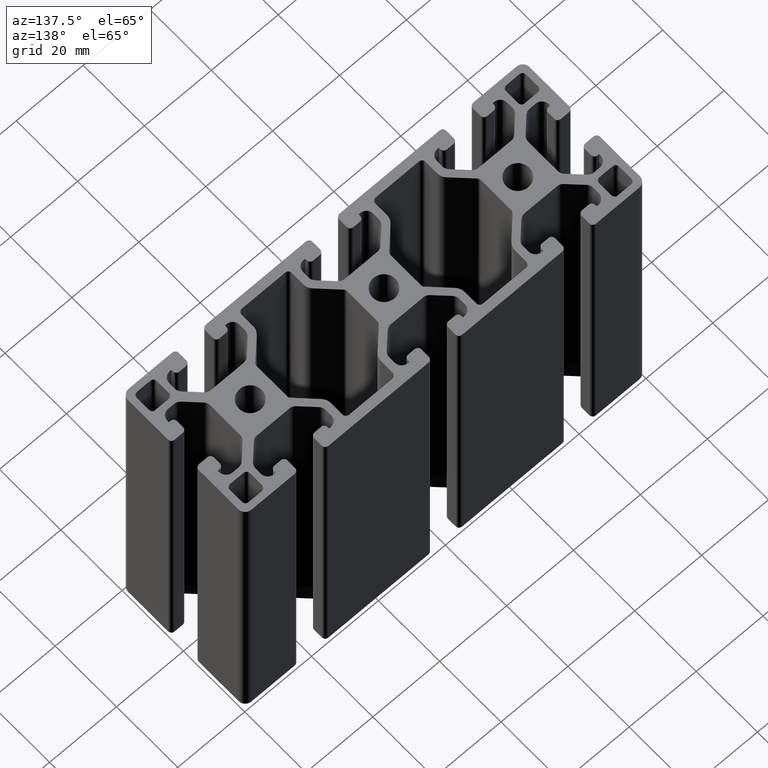
[diagram: clean part render]
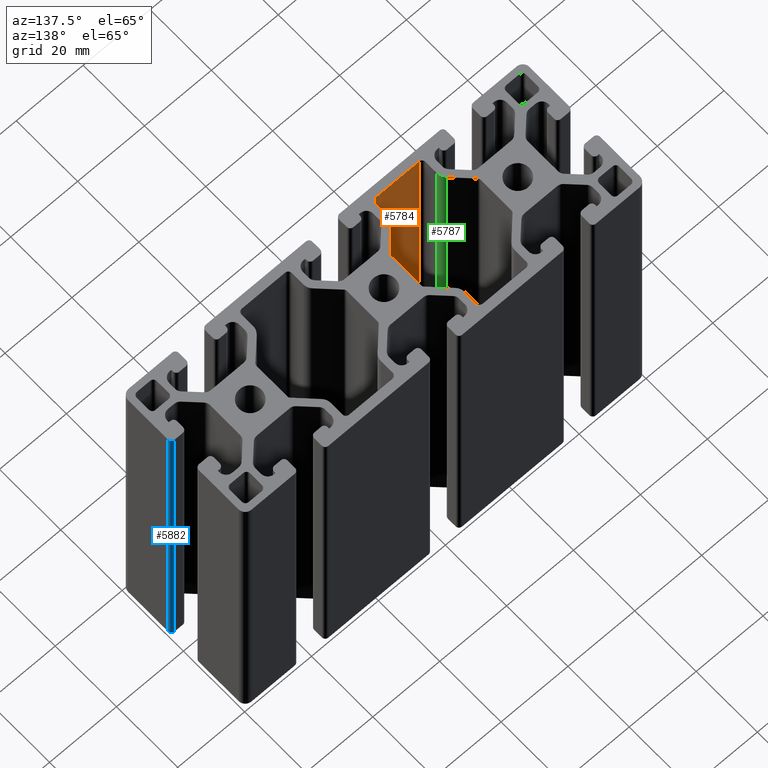
[diagram: same view with three faces highlighted in distinct colors, each labeled with its STEP entity id]
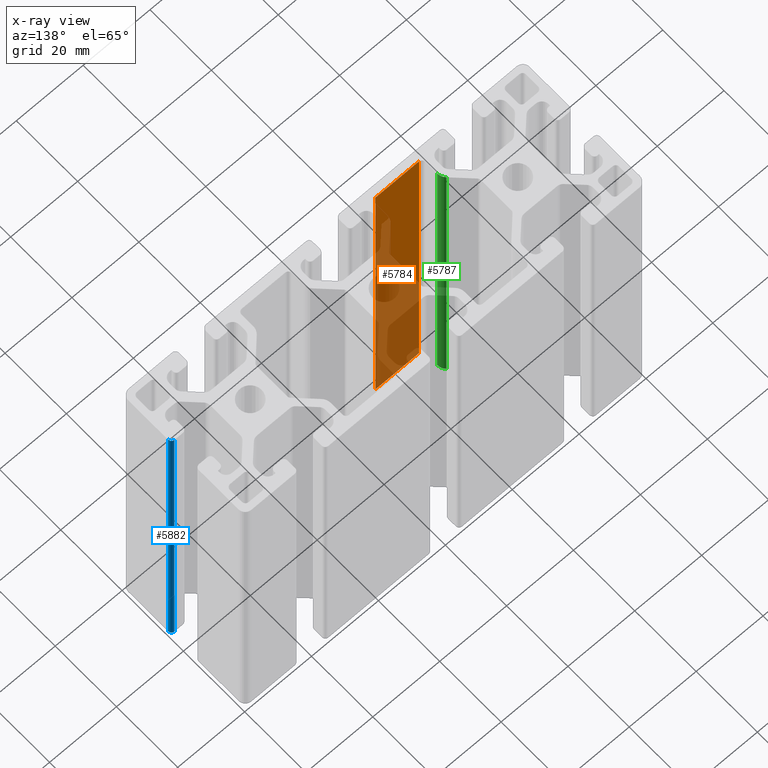
[diagram: x-ray of the same camera — body ghosted, the three highlighted faces saturated]
A machine part, auxiliary view with three faces highlighted in distinct colors.
The next image is the same camera in x-ray (body ghosted, the three faces saturated) — at least one of them is partly hidden behind the body in this view.
Their STEP definitions:

[orange] entity #5784 — the highlighted planar face has unit normal (0, -1, 0).
#57=PLANE('',#6129);
#236=FACE_OUTER_BOUND('',#537,.T.);
#537=EDGE_LOOP('',(#3979,#3980,#3981,#3982));
#901=LINE('',#8671,#1509);
#902=LINE('',#8674,#1510);
#903=LINE('',#8676,#1511);
#904=LINE('',#8677,#1512);
#1509=VECTOR('',#6886,100.);
#1510=VECTOR('',#6889,13.);
#1511=VECTOR('',#6890,13.);
#1512=VECTOR('',#6891,100.);
#2403=VERTEX_POINT('',#8667);
#2404=VERTEX_POINT('',#8669);
#2405=VERTEX_POINT('',#8673);
#2406=VERTEX_POINT('',#8675);
#3043=EDGE_CURVE('',#2404,#2403,#901,.T.);
#3044=EDGE_CURVE('',#2403,#2405,#902,.T.);
#3045=EDGE_CURVE('',#2406,#2404,#903,.T.);
#3046=EDGE_CURVE('',#2406,#2405,#904,.T.);
#3979=ORIENTED_EDGE('',*,*,#3044,.F.);
#3980=ORIENTED_EDGE('',*,*,#3043,.F.);
#3981=ORIENTED_EDGE('',*,*,#3045,.F.);
#3982=ORIENTED_EDGE('',*,*,#3046,.T.);
#5784=ADVANCED_FACE('',(#236),#57,.F.);
#6129=AXIS2_PLACEMENT_3D('',#8672,#6887,#6888);
#6886=DIRECTION('',(0.,0.,1.));
#6887=DIRECTION('center_axis',(6.83214169000096E-16,-1.,0.));
#6888=DIRECTION('ref_axis',(1.,7.105427357601E-16,0.));
#6889=DIRECTION('',(-1.,-6.83214169000096E-16,0.));
#6890=DIRECTION('',(1.,6.83214169000096E-16,0.));
#6891=DIRECTION('',(0.,0.,1.));
#8667=CARTESIAN_POINT('',(-13.5,-17.5,100.));
#8669=CARTESIAN_POINT('',(-13.5,-17.5,0.));
#8671=CARTESIAN_POINT('',(-13.5,-17.5,0.));
#8672=CARTESIAN_POINT('Origin',(-26.5,-17.5,0.));
#8673=CARTESIAN_POINT('',(-26.5,-17.5,100.));
#8674=CARTESIAN_POINT('',(-13.25,-17.5,100.));
#8675=CARTESIAN_POINT('',(-26.5,-17.5,0.));
#8676=CARTESIAN_POINT('',(-13.25,-17.5,0.));
#8677=CARTESIAN_POINT('',(-26.5,-17.5,0.));

[blue] entity #5882 — the highlighted cylindrical surface (edge-blend (fillet) strip) has radius 1 mm, axis along (0, 0, 1).
#334=FACE_OUTER_BOUND('',#637,.T.);
#637=EDGE_LOOP('',(#4367,#4368,#4369,#4370));
#1098=LINE('',#9262,#1706);
#1100=LINE('',#9268,#1708);
#1706=VECTOR('',#7471,100.);
#1708=VECTOR('',#7477,100.);
#2171=CIRCLE('',#6324,0.999998004051136);
#2172=CIRCLE('',#6325,0.999998004051136);
#2603=VERTEX_POINT('',#9259);
#2604=VERTEX_POINT('',#9261);
#2605=VERTEX_POINT('',#9265);
#2606=VERTEX_POINT('',#9267);
#3336=EDGE_CURVE('',#2604,#2603,#1098,.T.);
#3338=EDGE_CURVE('',#2605,#2603,#2171,.T.);
#3339=EDGE_CURVE('',#2605,#2606,#1100,.T.);
#3340=EDGE_CURVE('',#2604,#2606,#2172,.T.);
#4367=ORIENTED_EDGE('',*,*,#3338,.F.);
#4368=ORIENTED_EDGE('',*,*,#3339,.T.);
#4369=ORIENTED_EDGE('',*,*,#3340,.F.);
#4370=ORIENTED_EDGE('',*,*,#3336,.T.);
#5668=CYLINDRICAL_SURFACE('',#6323,0.999998004051136);
#5882=ADVANCED_FACE('',(#334),#5668,.T.);
#6323=AXIS2_PLACEMENT_3D('',#9264,#7473,#7474);
#6324=AXIS2_PLACEMENT_3D('',#9266,#7475,#7476);
#6325=AXIS2_PLACEMENT_3D('',#9269,#7478,#7479);
#7471=DIRECTION('',(0.,0.,1.));
#7473=DIRECTION('center_axis',(0.,0.,1.));
#7474=DIRECTION('ref_axis',(-1.,4.44090096231191E-15,0.));
#7475=DIRECTION('center_axis',(0.,0.,1.));
#7476=DIRECTION('ref_axis',(-1.,4.44090096231191E-15,0.));
#7477=DIRECTION('',(0.,0.,-1.));
#7478=DIRECTION('center_axis',(0.,0.,-1.));
#7479=DIRECTION('ref_axis',(-1.,4.44090096231191E-15,0.));
#9259=CARTESIAN_POINT('',(59.0000019959489,-3.99999999999999,100.));
#9261=CARTESIAN_POINT('',(59.0000019959489,-3.99999999999999,0.));
#9262=CARTESIAN_POINT('',(59.0000019959489,-3.99999999999999,0.));
#9264=CARTESIAN_POINT('Origin',(59.0000019959489,-4.99999800405113,0.));
#9265=CARTESIAN_POINT('',(60.,-4.99999800405114,100.));
#9266=CARTESIAN_POINT('Origin',(59.0000019959489,-4.99999800405113,100.));
#9267=CARTESIAN_POINT('',(60.,-4.99999800405114,0.));
#9268=CARTESIAN_POINT('',(60.,-4.99999800405113,0.));
#9269=CARTESIAN_POINT('Origin',(59.0000019959489,-4.99999800405113,0.));

[green] entity #5787 — the highlighted cylindrical surface (edge-blend (fillet) strip) has radius 3 mm, axis along (0, 0, 1).
#239=FACE_OUTER_BOUND('',#540,.T.);
#540=EDGE_LOOP('',(#3991,#3992,#3993,#3994));
#908=LINE('',#8689,#1516);
#909=LINE('',#8695,#1517);
#1516=VECTOR('',#6903,100.);
#1517=VECTOR('',#6910,100.);
#2077=CIRCLE('',#6135,3.00000000000001);
#2078=CIRCLE('',#6136,3.00000000000001);
#2409=VERTEX_POINT('',#8685);
#2410=VERTEX_POINT('',#8687);
#2411=VERTEX_POINT('',#8691);
#2412=VERTEX_POINT('',#8693);
#3052=EDGE_CURVE('',#2410,#2409,#908,.T.);
#3053=EDGE_CURVE('',#2409,#2411,#2077,.T.);
#3054=EDGE_CURVE('',#2412,#2410,#2078,.T.);
#3055=EDGE_CURVE('',#2412,#2411,#909,.T.);
#3991=ORIENTED_EDGE('',*,*,#3053,.F.);
#3992=ORIENTED_EDGE('',*,*,#3052,.F.);
#3993=ORIENTED_EDGE('',*,*,#3054,.F.);
#3994=ORIENTED_EDGE('',*,*,#3055,.T.);
#5621=CYLINDRICAL_SURFACE('',#6134,3.00000000000001);
#5787=ADVANCED_FACE('',(#239),#5621,.T.);
#6134=AXIS2_PLACEMENT_3D('',#8690,#6904,#6905);
#6135=AXIS2_PLACEMENT_3D('',#8692,#6906,#6907);
#6136=AXIS2_PLACEMENT_3D('',#8694,#6908,#6909);
#6903=DIRECTION('',(0.,0.,1.));
#6904=DIRECTION('center_axis',(0.,0.,1.));
#6905=DIRECTION('ref_axis',(-1.,-1.48029736616687E-15,0.));
#6906=DIRECTION('center_axis',(0.,0.,1.));
#6907=DIRECTION('ref_axis',(-1.,-1.48029736616687E-15,0.));
#6908=DIRECTION('center_axis',(0.,0.,-1.));
#6909=DIRECTION('ref_axis',(-1.,-1.48029736616687E-15,0.));
#6910=DIRECTION('',(0.,0.,1.));
#8685=CARTESIAN_POINT('',(-27.5,-12.6819805153394,100.));
#8687=CARTESIAN_POINT('',(-27.5,-12.6819805153394,0.));
#8689=CARTESIAN_POINT('',(-27.5,-12.6819805153394,0.));
#8690=CARTESIAN_POINT('Origin',(-30.5,-12.6819805153395,0.));
#8691=CARTESIAN_POINT('',(-28.3786796564404,-10.5606601717798,100.));
#8692=CARTESIAN_POINT('Origin',(-30.5,-12.6819805153395,100.));
#8693=CARTESIAN_POINT('',(-28.3786796564404,-10.5606601717798,0.));
#8694=CARTESIAN_POINT('Origin',(-30.5,-12.6819805153395,0.));
#8695=CARTESIAN_POINT('',(-28.3786796564404,-10.5606601717798,0.));